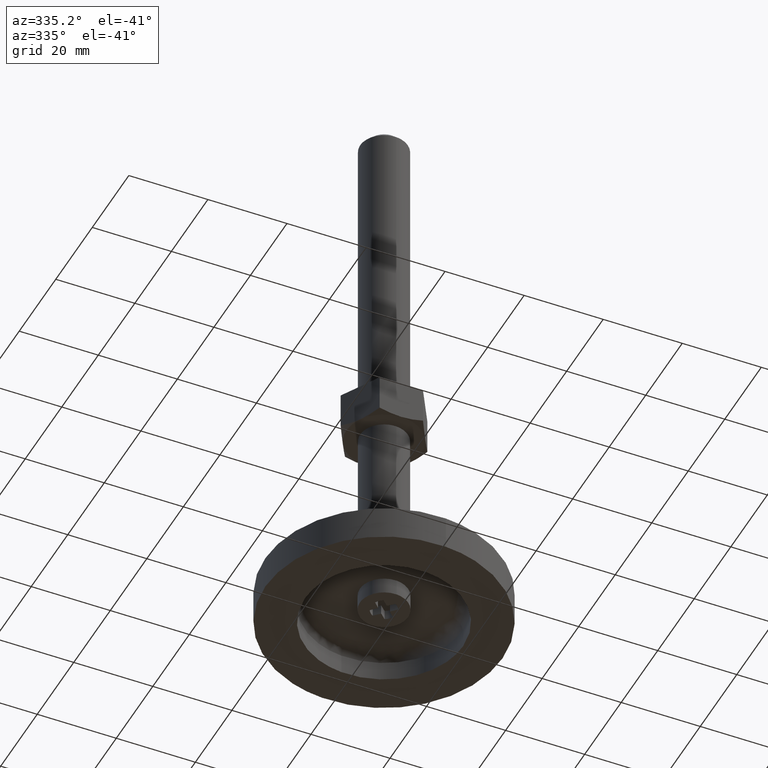
[diagram: clean part render]
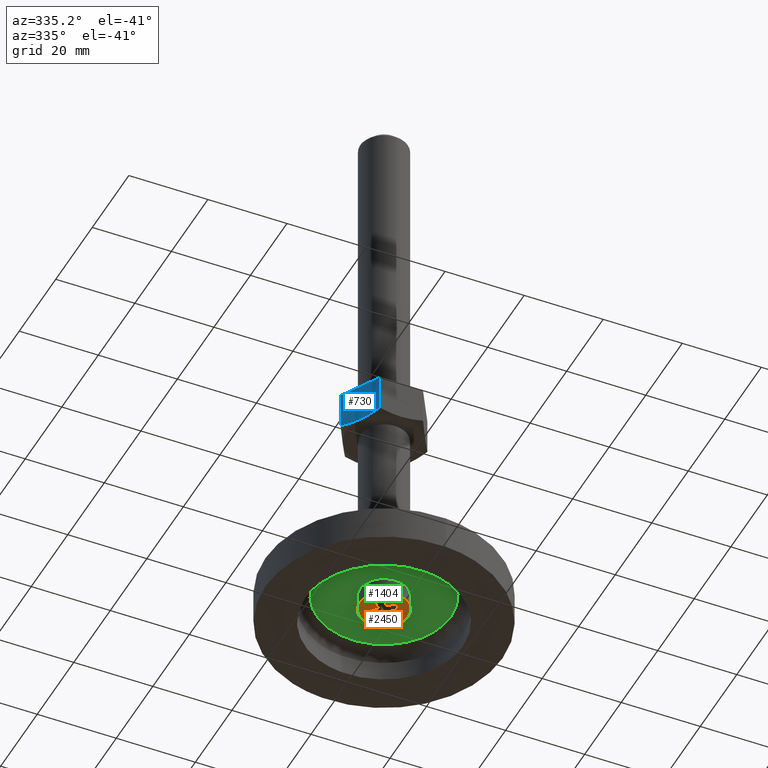
[diagram: same view with three faces highlighted in distinct colors, each labeled with its STEP entity id]
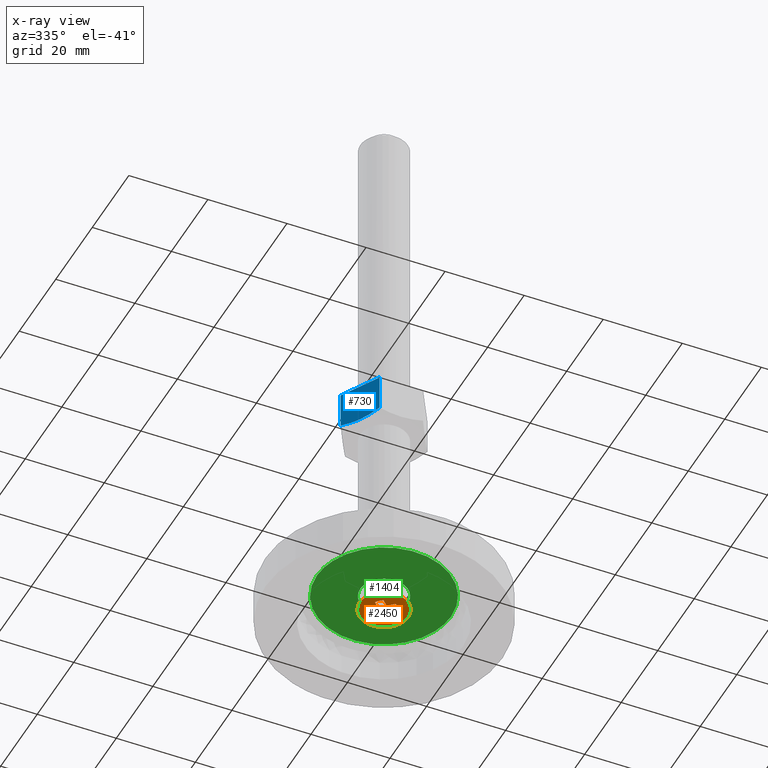
[diagram: x-ray of the same camera — body ghosted, the three highlighted faces saturated]
A machine part, auxiliary view with three faces highlighted in distinct colors.
The next image is the same camera in x-ray (body ghosted, the three faces saturated) — at least one of them is partly hidden behind the body in this view.
Their STEP definitions:

[orange] entity #2450 — the highlighted face is a freeform B-spline surface patch.
#1854=CARTESIAN_POINT('',(1.507458000000000,0.0,3.800000000000000));
#1855=VERTEX_POINT('',#1854);
#1856=CARTESIAN_POINT('',(1.516942000000000,-0.031022999999990,3.800000000000000));
#1857=VERTEX_POINT('',#1856);
#1858=CARTESIAN_POINT('',(1.507458000000000,0.0,3.800000000000000));
#1859=CARTESIAN_POINT('',(1.516942000000000,-0.031022999999990,3.800000000000000));
#1860=QUASI_UNIFORM_CURVE('',1,(#1858,#1859),.UNSPECIFIED.,.F.,.U.);
#1861=EDGE_CURVE('',#1855,#1857,#1860,.T.);
#1882=CARTESIAN_POINT('',(1.516942000000000,0.031022000000021,3.800000000000000));
#1883=VERTEX_POINT('',#1882);
#1884=CARTESIAN_POINT('',(1.516942000000000,0.031022000000021,3.800000000000000));
#1885=CARTESIAN_POINT('',(1.507458000000000,0.0,3.800000000000000));
#1886=QUASI_UNIFORM_CURVE('',1,(#1884,#1885),.UNSPECIFIED.,.F.,.U.);
#1887=EDGE_CURVE('',#1883,#1855,#1886,.T.);
#1904=CARTESIAN_POINT('',(2.938048381164885,1.502621612361035,3.800000000000000));
#1905=VERTEX_POINT('',#1904);
#1906=CARTESIAN_POINT('',(2.938048381164885,1.502621612361035,3.800000000000000));
#1907=CARTESIAN_POINT('',(1.516942000000000,0.031022000000021,3.800000000000000));
#1908=QUASI_UNIFORM_CURVE('',1,(#1906,#1907),.UNSPECIFIED.,.F.,.U.);
#1909=EDGE_CURVE('',#1905,#1883,#1908,.T.);
#1935=CARTESIAN_POINT('',(1.502622000000000,2.938048000000000,3.800000000000000));
#1936=VERTEX_POINT('',#1935);
#1937=CARTESIAN_POINT('',(1.502622000000000,2.938048000000000,3.800000000000000));
#1938=CARTESIAN_POINT('',(2.452332777499703,2.452332392051412,3.800000000000000));
#1939=CARTESIAN_POINT('',(2.938048381164885,1.502621612361037,3.800000000000000));
#1947=(BOUNDED_CURVE()B_SPLINE_CURVE(2,(#1937,#1938,#1939),.UNSPECIFIED.,.F.,.U.)CURVE()GEOMETRIC_REPRESENTATION_ITEM()QUASI_UNIFORM_CURVE()RATIONAL_B_SPLINE_CURVE((1.0,0.951523619757786,1.0))REPRESENTATION_ITEM(''));
#1948=EDGE_CURVE('',#1936,#1905,#1947,.T.);
#1965=CARTESIAN_POINT('',(0.031023000000019,1.516941000000000,3.800000000000000));
#1966=VERTEX_POINT('',#1965);
#1967=CARTESIAN_POINT('',(0.031023000000019,1.516941000000000,3.800000000000000));
#1968=CARTESIAN_POINT('',(1.502622000000000,2.938048000000000,3.800000000000000));
#1969=QUASI_UNIFORM_CURVE('',1,(#1967,#1968),.UNSPECIFIED.,.F.,.U.);
#1970=EDGE_CURVE('',#1966,#1936,#1969,.T.);
#1987=CARTESIAN_POINT('',(1.421085E-014,1.507457000000000,3.800000000000000));
#1988=VERTEX_POINT('',#1987);
#1989=CARTESIAN_POINT('',(1.421085E-014,1.507457000000000,3.800000000000000));
#1990=CARTESIAN_POINT('',(0.031023000000019,1.516941000000000,3.800000000000000));
#1991=QUASI_UNIFORM_CURVE('',1,(#1989,#1990),.UNSPECIFIED.,.F.,.U.);
#1992=EDGE_CURVE('',#1988,#1966,#1991,.T.);
#2009=CARTESIAN_POINT('',(-0.031022000000021,1.516941000000000,3.800000000000000));
#2010=VERTEX_POINT('',#2009);
#2011=CARTESIAN_POINT('',(-0.031022000000021,1.516941000000000,3.800000000000000));
#2012=CARTESIAN_POINT('',(1.421085E-014,1.507457000000000,3.800000000000000));
#2013=QUASI_UNIFORM_CURVE('',1,(#2011,#2012),.UNSPECIFIED.,.F.,.U.);
#2014=EDGE_CURVE('',#2010,#1988,#2013,.T.);
#2031=CARTESIAN_POINT('',(-1.502621612361020,2.938048381164870,3.800000000000000));
#2032=VERTEX_POINT('',#2031);
#2033=CARTESIAN_POINT('',(-1.502621612361020,2.938048381164870,3.800000000000000));
#2034=CARTESIAN_POINT('',(-0.031022000000021,1.516941000000000,3.800000000000000));
#2035=QUASI_UNIFORM_CURVE('',1,(#2033,#2034),.UNSPECIFIED.,.F.,.U.);
#2036=EDGE_CURVE('',#2032,#2010,#2035,.T.);
#2062=CARTESIAN_POINT('',(-2.938048000000000,1.502621000000000,3.800000000000000));
#2063=VERTEX_POINT('',#2062);
#2064=CARTESIAN_POINT('',(-2.938048000000000,1.502621000000000,3.800000000000000));
#2065=CARTESIAN_POINT('',(-2.452332829796128,2.452332553621587,3.800000000000000));
#2066=CARTESIAN_POINT('',(-1.502621612361022,2.938048381164871,3.800000000000000));
#2074=(BOUNDED_CURVE()B_SPLINE_CURVE(2,(#2064,#2065,#2066),.UNSPECIFIED.,.F.,.U.)CURVE()GEOMETRIC_REPRESENTATION_ITEM()QUASI_UNIFORM_CURVE()RATIONAL_B_SPLINE_CURVE((1.0,0.951523578266854,1.0))REPRESENTATION_ITEM(''));
#2075=EDGE_CURVE('',#2063,#2032,#2074,.T.);
#2092=CARTESIAN_POINT('',(-1.516942000000000,0.031022000000021,3.800000000000000));
#2093=VERTEX_POINT('',#2092);
#2094=CARTESIAN_POINT('',(-1.516942000000000,0.031022000000021,3.800000000000000));
#2095=CARTESIAN_POINT('',(-2.938048000000000,1.502621000000000,3.800000000000000));
#2096=QUASI_UNIFORM_CURVE('',1,(#2094,#2095),.UNSPECIFIED.,.F.,.U.);
#2097=EDGE_CURVE('',#2093,#2063,#2096,.T.);
#2114=CARTESIAN_POINT('',(-1.507457000000000,0.0,3.800000000000000));
#2115=VERTEX_POINT('',#2114);
#2116=CARTESIAN_POINT('',(-1.507457000000000,0.0,3.800000000000000));
#2117=CARTESIAN_POINT('',(-1.516942000000000,0.031022000000021,3.800000000000000));
#2118=QUASI_UNIFORM_CURVE('',1,(#2116,#2117),.UNSPECIFIED.,.F.,.U.);
#2119=EDGE_CURVE('',#2115,#2093,#2118,.T.);
#2136=CARTESIAN_POINT('',(-1.516942000000000,-0.031022999999990,3.800000000000000));
#2137=VERTEX_POINT('',#2136);
#2138=CARTESIAN_POINT('',(-1.516942000000000,-0.031022999999990,3.800000000000000));
#2139=CARTESIAN_POINT('',(-1.507457000000000,0.0,3.800000000000000));
#2140=QUASI_UNIFORM_CURVE('',1,(#2138,#2139),.UNSPECIFIED.,.F.,.U.);
#2141=EDGE_CURVE('',#2137,#2115,#2140,.T.);
#2158=CARTESIAN_POINT('',(-2.938048119581405,-1.502622123830235,3.800000000000000));
#2159=VERTEX_POINT('',#2158);
#2160=CARTESIAN_POINT('',(-2.938048119581405,-1.502622123830235,3.800000000000000));
#2161=CARTESIAN_POINT('',(-1.516942000000000,-0.031022999999990,3.800000000000000));
#2162=QUASI_UNIFORM_CURVE('',1,(#2160,#2161),.UNSPECIFIED.,.F.,.U.);
#2163=EDGE_CURVE('',#2159,#2137,#2162,.T.);
#2189=CARTESIAN_POINT('',(-1.502621000000000,-2.938049000000000,3.800000000000000));
#2190=VERTEX_POINT('',#2189);
#2191=CARTESIAN_POINT('',(-1.502621000000000,-2.938049000000000,3.800000000000000));
#2192=CARTESIAN_POINT('',(-2.452332156666679,-2.452333198131919,3.800000000000000));
#2193=CARTESIAN_POINT('',(-2.938048119581405,-1.502622123830235,3.800000000000000));
#2201=(BOUNDED_CURVE()B_SPLINE_CURVE(2,(#2191,#2192,#2193),.UNSPECIFIED.,.F.,.U.)CURVE()GEOMETRIC_REPRESENTATION_ITEM()QUASI_UNIFORM_CURVE()RATIONAL_B_SPLINE_CURVE((1.0,0.951523583819050,1.0))REPRESENTATION_ITEM(''));
#2202=EDGE_CURVE('',#2190,#2159,#2201,.T.);
#2219=CARTESIAN_POINT('',(-0.031022000000021,-1.516942000000000,3.800000000000000));
#2220=VERTEX_POINT('',#2219);
#2221=CARTESIAN_POINT('',(-0.031022000000021,-1.516942000000000,3.800000000000000));
#2222=CARTESIAN_POINT('',(-1.502621000000000,-2.938049000000000,3.800000000000000));
#2223=QUASI_UNIFORM_CURVE('',1,(#2221,#2222),.UNSPECIFIED.,.F.,.U.);
#2224=EDGE_CURVE('',#2220,#2190,#2223,.T.);
#2241=CARTESIAN_POINT('',(1.421085E-014,-1.507458000000000,3.800000000000000));
#2242=VERTEX_POINT('',#2241);
#2243=CARTESIAN_POINT('',(1.421085E-014,-1.507458000000000,3.800000000000000));
#2244=CARTESIAN_POINT('',(-0.031022000000021,-1.516942000000000,3.800000000000000));
#2245=QUASI_UNIFORM_CURVE('',1,(#2243,#2244),.UNSPECIFIED.,.F.,.U.);
#2246=EDGE_CURVE('',#2242,#2220,#2245,.T.);
#2263=CARTESIAN_POINT('',(0.031023000000019,-1.516942000000000,3.800000000000000));
#2264=VERTEX_POINT('',#2263);
#2265=CARTESIAN_POINT('',(0.031023000000019,-1.516942000000000,3.800000000000000));
#2266=CARTESIAN_POINT('',(1.421085E-014,-1.507458000000000,3.800000000000000));
#2267=QUASI_UNIFORM_CURVE('',1,(#2265,#2266),.UNSPECIFIED.,.F.,.U.);
#2268=EDGE_CURVE('',#2264,#2242,#2267,.T.);
#2285=CARTESIAN_POINT('',(1.502621612361045,-2.938048381164870,3.800000000000000));
#2286=VERTEX_POINT('',#2285);
#2287=CARTESIAN_POINT('',(1.502621612361045,-2.938048381164870,3.800000000000000));
#2288=CARTESIAN_POINT('',(0.031023000000019,-1.516942000000000,3.800000000000000));
#2289=QUASI_UNIFORM_CURVE('',1,(#2287,#2288),.UNSPECIFIED.,.F.,.U.);
#2290=EDGE_CURVE('',#2286,#2264,#2289,.T.);
#2316=CARTESIAN_POINT('',(2.938048381164885,-1.502621612361030,3.800000000000000));
#2317=VERTEX_POINT('',#2316);
#2318=CARTESIAN_POINT('',(2.938048381164888,-1.502621612361031,3.800000000000000));
#2319=CARTESIAN_POINT('',(2.452332647072784,-2.452332647072770,3.800000000000000));
#2320=CARTESIAN_POINT('',(1.502621612361045,-2.938048381164874,3.800000000000000));
#2328=(BOUNDED_CURVE()B_SPLINE_CURVE(2,(#2318,#2319,#2320),.UNSPECIFIED.,.F.,.U.)CURVE()GEOMETRIC_REPRESENTATION_ITEM()QUASI_UNIFORM_CURVE()RATIONAL_B_SPLINE_CURVE((1.0,0.951523595585997,1.0))REPRESENTATION_ITEM(''));
#2329=EDGE_CURVE('',#2317,#2286,#2328,.T.);
#2346=CARTESIAN_POINT('',(1.516942000000000,-0.031022999999990,3.800000000000000));
#2347=CARTESIAN_POINT('',(2.938048381164885,-1.502621612361030,3.800000000000000));
#2348=QUASI_UNIFORM_CURVE('',1,(#2346,#2347),.UNSPECIFIED.,.F.,.U.);
#2349=EDGE_CURVE('',#1857,#2317,#2348,.T.);
#2357=CARTESIAN_POINT('',(-6.709389976354034,6.709239748060960,3.800000000000000));
#2358=CARTESIAN_POINT('',(6.709390303583533,6.709239748060960,3.800000000000000));
#2359=CARTESIAN_POINT('',(-6.709389976354034,-6.709239638984462,3.800000000000000));
#2360=CARTESIAN_POINT('',(6.709390303583533,-6.709239638984462,3.800000000000000));
#2361=B_SPLINE_SURFACE_WITH_KNOTS('',1,1,((#2357,#2359),(#2358,#2360)),.UNSPECIFIED.,.F.,.F.,.U.,(2,2),(2,2),(0.0,13.418780279937570),(0.0,13.418479387045419),.UNSPECIFIED.);
#2362=CARTESIAN_POINT('',(-6.100000000000001,0.0,3.800000000000000));
#2363=VERTEX_POINT('',#2362);
#2364=CARTESIAN_POINT('',(-0.372396091483395,6.088622270353769,3.800000000000000));
#2365=VERTEX_POINT('',#2364);
#2366=CARTESIAN_POINT('',(-6.100000000000001,0.0,3.800000000000000));
#2367=CARTESIAN_POINT('',(-6.100000000000002,5.738307007821864,3.800000000000000));
#2368=CARTESIAN_POINT('',(-0.372396091483395,6.088622270353770,3.800000000000000));
#2376=(BOUNDED_CURVE()B_SPLINE_CURVE(2,(#2366,#2367,#2368),.UNSPECIFIED.,.F.,.U.)B_SPLINE_CURVE_WITH_KNOTS((3,3),(0.0,0.239332962232878),.UNSPECIFIED.)CURVE()GEOMETRIC_REPRESENTATION_ITEM()RATIONAL_B_SPLINE_CURVE((1.0,0.719603993293816,0.976072041653720))REPRESENTATION_ITEM(''));
#2377=EDGE_CURVE('',#2363,#2365,#2376,.T.);
#2378=ORIENTED_EDGE('',*,*,#2377,.T.);
#2379=CARTESIAN_POINT('',(6.100000000000001,0.0,3.800000000000000));
#2380=VERTEX_POINT('',#2379);
#2381=CARTESIAN_POINT('',(-0.372396091483395,6.088622270353770,3.800000000000000));
#2382=CARTESIAN_POINT('',(-0.186371856282226,6.100000000000000,3.800000000000000));
#2383=CARTESIAN_POINT('',(0.0,6.100000000000001,3.800000000000000));
#2384=CARTESIAN_POINT('',(6.100000000000001,6.100000000000001,3.800000000000000));
#2385=CARTESIAN_POINT('',(6.100000000000001,0.0,3.800000000000000));
#2393=(BOUNDED_CURVE()B_SPLINE_CURVE(2,(#2381,#2382,#2383,#2384,#2385),.UNSPECIFIED.,.F.,.U.)B_SPLINE_CURVE_WITH_KNOTS((3,2,3),(0.239332962232878,0.250000000000000,0.500000000000000),.UNSPECIFIED.)CURVE()GEOMETRIC_REPRESENTATION_ITEM()RATIONAL_B_SPLINE_CURVE((0.976072041653720,0.987502787892732,1.0,0.707106781186547,1.0))REPRESENTATION_ITEM(''));
#2394=EDGE_CURVE('',#2365,#2380,#2393,.T.);
#2395=ORIENTED_EDGE('',*,*,#2394,.T.);
#2396=CARTESIAN_POINT('',(0.372396091483396,-6.088622270353769,3.800000000000000));
#2397=VERTEX_POINT('',#2396);
#2398=CARTESIAN_POINT('',(6.100000000000001,0.0,3.800000000000000));
#2399=CARTESIAN_POINT('',(6.100000000000001,-5.738307007821860,3.799999999999999));
#2400=CARTESIAN_POINT('',(0.372396091483397,-6.088622270353770,3.799999999999999));
#2408=(BOUNDED_CURVE()B_SPLINE_CURVE(2,(#2398,#2399,#2400),.UNSPECIFIED.,.F.,.U.)B_SPLINE_CURVE_WITH_KNOTS((3,3),(0.500000000000000,0.739332962232878),.UNSPECIFIED.)CURVE()GEOMETRIC_REPRESENTATION_ITEM()RATIONAL_B_SPLINE_CURVE((1.0,0.719603993293816,0.976072041653719))REPRESENTATION_ITEM(''));
#2409=EDGE_CURVE('',#2380,#2397,#2408,.T.);
#2410=ORIENTED_EDGE('',*,*,#2409,.T.);
#2411=CARTESIAN_POINT('',(0.372396091483397,-6.088622270353770,3.799999999999999));
#2412=CARTESIAN_POINT('',(0.186371856282227,-6.100000000000001,3.800000000000000));
#2413=CARTESIAN_POINT('',(0.0,-6.100000000000001,3.800000000000000));
#2414=CARTESIAN_POINT('',(-6.100000000000001,-6.100000000000001,3.800000000000000));
#2415=CARTESIAN_POINT('',(-6.100000000000001,0.0,3.800000000000000));
#2423=(BOUNDED_CURVE()B_SPLINE_CURVE(2,(#2411,#2412,#2413,#2414,#2415),.UNSPECIFIED.,.F.,.U.)B_SPLINE_CURVE_WITH_KNOTS((3,2,3),(0.739332962232878,0.750000000000000,1.0),.UNSPECIFIED.)CURVE()GEOMETRIC_REPRESENTATION_ITEM()RATIONAL_B_SPLINE_CURVE((0.976072041653719,0.987502787892732,1.0,0.707106781186547,1.0))REPRESENTATION_ITEM(''));
#2424=EDGE_CURVE('',#2397,#2363,#2423,.T.);
#2425=ORIENTED_EDGE('',*,*,#2424,.T.);
#2426=EDGE_LOOP('',(#2378,#2395,#2410,#2425));
#2427=FACE_OUTER_BOUND('',#2426,.T.);
#2428=ORIENTED_EDGE('',*,*,#2349,.F.);
#2429=ORIENTED_EDGE('',*,*,#1861,.F.);
#2430=ORIENTED_EDGE('',*,*,#1887,.F.);
#2431=ORIENTED_EDGE('',*,*,#1909,.F.);
#2432=ORIENTED_EDGE('',*,*,#1948,.F.);
#2433=ORIENTED_EDGE('',*,*,#1970,.F.);
#2434=ORIENTED_EDGE('',*,*,#1992,.F.);
#2435=ORIENTED_EDGE('',*,*,#2014,.F.);
#2436=ORIENTED_EDGE('',*,*,#2036,.F.);
#2437=ORIENTED_EDGE('',*,*,#2075,.F.);
#2438=ORIENTED_EDGE('',*,*,#2097,.F.);
#2439=ORIENTED_EDGE('',*,*,#2119,.F.);
#2440=ORIENTED_EDGE('',*,*,#2141,.F.);
#2441=ORIENTED_EDGE('',*,*,#2163,.F.);
#2442=ORIENTED_EDGE('',*,*,#2202,.F.);
#2443=ORIENTED_EDGE('',*,*,#2224,.F.);
#2444=ORIENTED_EDGE('',*,*,#2246,.F.);
#2445=ORIENTED_EDGE('',*,*,#2268,.F.);
#2446=ORIENTED_EDGE('',*,*,#2290,.F.);
#2447=ORIENTED_EDGE('',*,*,#2329,.F.);
#2448=EDGE_LOOP('',(#2428,#2429,#2430,#2431,#2432,#2433,#2434,#2435,#2436,#2437,#2438,#2439,#2440,#2441,#2442,#2443,#2444,#2445,#2446,#2447));
#2449=FACE_BOUND('',#2448,.T.);
#2450=ADVANCED_FACE('',(#2427,#2449),#2361,.T.);

[blue] entity #730 — the highlighted face is a freeform B-spline surface patch.
#192=CARTESIAN_POINT('',(-8.227240917976038,-4.750000142069610,55.0));
#193=VERTEX_POINT('',#192);
#495=CARTESIAN_POINT('',(-5.484827000000000,-9.499999999999890,55.848505520439900));
#496=VERTEX_POINT('',#495);
#497=CARTESIAN_POINT('',(-8.227240917976038,-4.750000142069610,55.0));
#498=CARTESIAN_POINT('',(-8.112392931167415,-4.948922674313443,55.000000849188950));
#499=CARTESIAN_POINT('',(-7.996987996330014,-5.148809868762444,55.004845661841777));
#500=CARTESIAN_POINT('',(-7.765462005362447,-5.549824616023771,55.024220137699579));
#501=CARTESIAN_POINT('',(-7.649230439246872,-5.751143577730128,55.038873433089947));
#502=CARTESIAN_POINT('',(-7.301698845640712,-6.353085906506609,55.096876855911923));
#503=CARTESIAN_POINT('',(-7.071564642153546,-6.751690007333116,55.154303352864993));
#504=CARTESIAN_POINT('',(-6.385259256312820,-7.940405709172234,55.376053473600990));
#505=CARTESIAN_POINT('',(-5.933169333746267,-8.723448361445419,55.589654964975153));
#506=CARTESIAN_POINT('',(-5.484826999999972,-9.499999999999940,55.848505520439574));
#507=B_SPLINE_CURVE_WITH_KNOTS('',3,(#497,#498,#499,#500,#501,#502,#503,#504,#505,#506),.UNSPECIFIED.,.F.,.U.,(4,2,2,2,4),(0.500936464892180,0.562499999999999,0.624999999999999,0.750000000000000,1.0),.UNSPECIFIED.);
#508=EDGE_CURVE('',#193,#496,#507,.T.);
#541=CARTESIAN_POINT('',(-10.969654999999999,7.479928E-016,55.848505615153002));
#542=VERTEX_POINT('',#541);
#557=CARTESIAN_POINT('',(-10.969654999999999,7.479928E-016,55.848505615153002));
#558=CARTESIAN_POINT('',(-10.521870856972591,-0.775584823947164,55.589977319636759));
#559=CARTESIAN_POINT('',(-10.070821999693550,-1.556824298393903,55.376903152500709));
#560=CARTESIAN_POINT('',(-9.387193509194672,-2.740903481868612,55.155520460263787));
#561=CARTESIAN_POINT('',(-9.158138658389831,-3.137638089160949,55.098136916629663));
#562=CARTESIAN_POINT('',(-8.697361337594094,-3.935727755338156,55.020510692422221));
#563=CARTESIAN_POINT('',(-8.465636562488992,-4.337086806797649,55.000300105609512));
#564=CARTESIAN_POINT('',(-8.230734776492051,-4.743948602093854,55.000000850196187));
#565=CARTESIAN_POINT('',(-8.228987911668185,-4.746974260478536,54.999999745959023));
#566=CARTESIAN_POINT('',(-8.227240917974688,-4.750000142071944,54.999999762489203));
#567=B_SPLINE_CURVE_WITH_KNOTS('',3,(#557,#558,#559,#560,#561,#562,#563,#564,#565,#566),.UNSPECIFIED.,.F.,.U.,(4,2,2,2,4),(0.0,0.250000000000000,0.375000000000000,0.499999999999999,0.500936464892180),.UNSPECIFIED.);
#568=EDGE_CURVE('',#542,#193,#567,.T.);
#578=CARTESIAN_POINT('',(-5.484827000000000,-9.499999999999890,65.0));
#579=VERTEX_POINT('',#578);
#580=CARTESIAN_POINT('',(-10.969654999999999,0.0,65.0));
#581=VERTEX_POINT('',#580);
#582=CARTESIAN_POINT('',(-5.484827000000000,-9.499999999999890,65.0));
#583=CARTESIAN_POINT('',(-10.969654999999999,0.0,65.0));
#584=QUASI_UNIFORM_CURVE('',1,(#582,#583),.UNSPECIFIED.,.F.,.U.);
#585=EDGE_CURVE('',#579,#581,#584,.T.);
#634=CARTESIAN_POINT('',(-5.484827000000000,-9.499999999999890,65.0));
#635=CARTESIAN_POINT('',(-5.484827000000000,-9.499999999999890,55.848505520439900));
#636=QUASI_UNIFORM_CURVE('',1,(#634,#635),.UNSPECIFIED.,.F.,.U.);
#637=EDGE_CURVE('',#579,#496,#636,.T.);
#709=CARTESIAN_POINT('',(-10.969654999999999,0.0,65.0));
#710=CARTESIAN_POINT('',(-10.969654999999999,7.479928E-016,55.848505615153002));
#711=QUASI_UNIFORM_CURVE('',1,(#709,#710),.UNSPECIFIED.,.F.,.U.);
#712=EDGE_CURVE('',#581,#542,#711,.T.);
#718=CARTESIAN_POINT('',(-11.243622147969340,0.474524981587148,54.500500019381938));
#719=CARTESIAN_POINT('',(-5.210859704916111,-9.974525236396897,54.500500019381938));
#720=CARTESIAN_POINT('',(-11.243622147969340,0.474524981587148,65.499500248838970));
#721=CARTESIAN_POINT('',(-5.210859704916111,-9.974525236396897,65.499500248838970));
#722=B_SPLINE_SURFACE_WITH_KNOTS('',1,1,((#718,#720),(#719,#721)),.UNSPECIFIED.,.F.,.F.,.U.,(2,2),(2,2),(0.0,12.065524155720130),(0.0,10.999000229457030),.UNSPECIFIED.);
#723=ORIENTED_EDGE('',*,*,#712,.T.);
#724=ORIENTED_EDGE('',*,*,#568,.T.);
#725=ORIENTED_EDGE('',*,*,#508,.T.);
#726=ORIENTED_EDGE('',*,*,#637,.F.);
#727=ORIENTED_EDGE('',*,*,#585,.T.);
#728=EDGE_LOOP('',(#723,#724,#725,#726,#727));
#729=FACE_OUTER_BOUND('',#728,.T.);
#730=ADVANCED_FACE('',(#729),#722,.T.);

[green] entity #1404 — the highlighted face is a freeform B-spline surface patch.
#1177=CARTESIAN_POINT('',(16.998657759165759,0.213622678700117,8.0));
#1178=VERTEX_POINT('',#1177);
#1192=CARTESIAN_POINT('',(-17.0,0.0,8.0));
#1193=VERTEX_POINT('',#1192);
#1194=CARTESIAN_POINT('',(-17.0,0.0,8.0));
#1195=CARTESIAN_POINT('',(-17.000267191690121,1.281351388941922,7.999999999999965));
#1196=CARTESIAN_POINT('',(-16.732440530957248,3.636122698613181,8.000000000000075));
#1197=CARTESIAN_POINT('',(-15.734160764370330,6.640192942413691,7.999999999999990));
#1198=CARTESIAN_POINT('',(-14.550583663675861,8.881205530059630,8.000000000000012));
#1199=CARTESIAN_POINT('',(-13.291097866960010,10.667236445901480,7.999999999999990));
#1200=CARTESIAN_POINT('',(-11.589746040445290,12.544242663715510,8.000000000000007));
#1201=CARTESIAN_POINT('',(-9.378701335168993,14.293609021184190,8.000000000000011));
#1202=CARTESIAN_POINT('',(-6.644121437018631,15.738250155777189,8.000000000000060));
#1203=CARTESIAN_POINT('',(-3.966432835081897,16.610456262089709,7.999999999999295));
#1204=CARTESIAN_POINT('',(-0.978612280981040,17.061748371238860,8.000000000001705));
#1205=CARTESIAN_POINT('',(1.804887195824551,16.985726646819241,7.999999999999027));
#1206=CARTESIAN_POINT('',(4.256371404256991,16.500338890089139,8.000000000000348));
#1207=CARTESIAN_POINT('',(6.234941497651493,15.856584682405471,7.999999999999835));
#1208=CARTESIAN_POINT('',(8.600093815462483,14.770189513673101,8.000000000000444));
#1209=CARTESIAN_POINT('',(11.174956257281560,12.978674757509250,8.000000000000126));
#1210=CARTESIAN_POINT('',(13.314202766346581,10.691393041549990,8.000000000000487));
#1211=CARTESIAN_POINT('',(14.955562382172831,8.240454378904857,7.999999999998850));
#1212=CARTESIAN_POINT('',(16.039101411546159,5.866272371685184,8.000000000002347));
#1213=CARTESIAN_POINT('',(16.797357250430039,3.050985595655051,7.999999999995453));
#1214=CARTESIAN_POINT('',(16.985718262638560,1.252461645797829,8.000000000005384));
#1215=CARTESIAN_POINT('',(16.998657759165759,0.213622678700117,8.0));
#1216=B_SPLINE_CURVE_WITH_KNOTS('',3,(#1194,#1195,#1196,#1197,#1198,#1199,#1200,#1201,#1202,#1203,#1204,#1205,#1206,#1207,#1208,#1209,#1210,#1211,#1212,#1213,#1214,#1215),.UNSPECIFIED.,.F.,.U.,(4,1,1,1,1,1,1,1,1,1,1,1,1,1,1,1,1,1,1,4),(0.000000278146963,3.843982647303250,7.064711386661521,9.454294312921228,11.428298649999240,13.610069256237569,17.038582355264349,19.843702459084088,22.856666570031688,25.453975827992760,28.882386439035681,31.168022864070888,32.934216683285861,35.116000166026510,38.960097494563229,42.284717084251639,44.466504770401073,47.791126263515586,50.076791322548317,53.193529594947393),.UNSPECIFIED.);
#1217=EDGE_CURVE('',#1193,#1178,#1216,.T.);
#1219=CARTESIAN_POINT('',(-16.998657759165759,-0.213622678700118,8.0));
#1220=VERTEX_POINT('',#1219);
#1221=CARTESIAN_POINT('',(-16.998657759165756,-0.213622678700118,8.0));
#1222=CARTESIAN_POINT('',(-17.000000003854119,-0.106815556203723,8.0));
#1223=CARTESIAN_POINT('',(-17.0,0.0,8.0));
#1231=(BOUNDED_CURVE()B_SPLINE_CURVE(2,(#1221,#1222,#1223),.UNSPECIFIED.,.F.,.U.)B_SPLINE_CURVE_WITH_KNOTS((3,3),(0.997784295915663,1.0),.UNSPECIFIED.)CURVE()GEOMETRIC_REPRESENTATION_ITEM()RATIONAL_B_SPLINE_CURVE((0.994854295630052,0.997404141195201,1.0))REPRESENTATION_ITEM(''));
#1232=EDGE_CURVE('',#1220,#1193,#1231,.T.);
#1281=CARTESIAN_POINT('',(17.0,0.0,8.0));
#1282=VERTEX_POINT('',#1281);
#1283=CARTESIAN_POINT('',(17.0,0.0,8.0));
#1284=CARTESIAN_POINT('',(17.000282562250430,-1.281358643855789,8.000000000000020));
#1285=CARTESIAN_POINT('',(16.787501723601849,-3.151284001454445,7.999999999999973));
#1286=CARTESIAN_POINT('',(16.016443905449471,-5.852300447182459,7.999999999999986));
#1287=CARTESIAN_POINT('',(14.888181762491801,-8.431011274396280,8.0));
#1288=CARTESIAN_POINT('',(13.076283868667749,-11.034134526432720,7.999999999999995));
#1289=CARTESIAN_POINT('',(10.999750360649360,-13.035824945227841,8.000000000000037));
#1290=CARTESIAN_POINT('',(8.948494064278393,-14.520787041459579,7.999999999999913));
#1291=CARTESIAN_POINT('',(6.429069890593824,-15.851966585781090,7.999999999999962));
#1292=CARTESIAN_POINT('',(3.494220123652004,-16.739065798391142,8.000000000000526));
#1293=CARTESIAN_POINT('',(0.835134496104643,-17.024735938636208,7.999999999999093));
#1294=CARTESIAN_POINT('',(-1.452810494810024,-16.983169217247280,8.000000000000684));
#1295=CARTESIAN_POINT('',(-4.134178850759068,-16.596193811183038,7.999999999999667));
#1296=CARTESIAN_POINT('',(-6.868141201891390,-15.650849582951800,7.999999999999982));
#1297=CARTESIAN_POINT('',(-9.109104615637191,-14.396687792209869,8.000000000000080));
#1298=CARTESIAN_POINT('',(-10.911066248347931,-13.101643962238979,8.000000000000657));
#1299=CARTESIAN_POINT('',(-12.632623359086180,-11.483078767497750,7.999999999999746));
#1300=CARTESIAN_POINT('',(-14.457701028760759,-9.118490369592253,8.000000000000048));
#1301=CARTESIAN_POINT('',(-15.928649430439620,-6.272861314739173,8.000000000000089));
#1302=CARTESIAN_POINT('',(-16.799053932885030,-3.154978439119134,7.999999999999842));
#1303=CARTESIAN_POINT('',(-16.987383378959329,-1.113950748292351,8.000000000000064));
#1304=CARTESIAN_POINT('',(-16.998657759165759,-0.213622678700118,8.0));
#1305=B_SPLINE_CURVE_WITH_KNOTS('',3,(#1283,#1284,#1285,#1286,#1287,#1288,#1289,#1290,#1291,#1292,#1293,#1294,#1295,#1296,#1297,#1298,#1299,#1300,#1301,#1302,#1303,#1304),.UNSPECIFIED.,.F.,.U.,(4,1,1,1,1,1,1,1,1,1,1,1,1,1,1,1,1,1,1,4),(0.000000278381428,3.843982647521713,5.610205665366543,8.415363812174384,12.259447634016720,15.064582457992890,17.038582355424591,19.843702459231888,23.583931443843241,26.181194161570531,27.843402385635422,30.440751718093889,34.284857063080850,36.466651094665302,38.128945004650092,40.934087921425139,43.531431814311752,47.063843659010317,50.492320866399751,53.193529594946980),.UNSPECIFIED.);
#1306=EDGE_CURVE('',#1282,#1220,#1305,.T.);
#1308=CARTESIAN_POINT('',(16.998657759165756,0.213622678700117,8.0));
#1309=CARTESIAN_POINT('',(17.000000003854119,0.106815556203722,8.0));
#1310=CARTESIAN_POINT('',(17.0,0.0,8.0));
#1318=(BOUNDED_CURVE()B_SPLINE_CURVE(2,(#1308,#1309,#1310),.UNSPECIFIED.,.F.,.U.)B_SPLINE_CURVE_WITH_KNOTS((3,3),(0.497784295915663,0.500000000000000),.UNSPECIFIED.)CURVE()GEOMETRIC_REPRESENTATION_ITEM()RATIONAL_B_SPLINE_CURVE((0.994854295630052,0.997404141195201,1.0))REPRESENTATION_ITEM(''));
#1319=EDGE_CURVE('',#1178,#1282,#1318,.T.);
#1327=CARTESIAN_POINT('',(18.698299934101399,-18.697931459019099,8.0));
#1328=CARTESIAN_POINT('',(-18.698300846052469,-18.697931459019099,8.0));
#1329=CARTESIAN_POINT('',(18.698299934101399,18.697932370952191,8.0));
#1330=CARTESIAN_POINT('',(-18.698300846052469,18.697932370952191,8.0));
#1331=B_SPLINE_SURFACE_WITH_KNOTS('',1,1,((#1327,#1329),(#1328,#1330)),.UNSPECIFIED.,.F.,.F.,.U.,(2,2),(2,2),(0.0,37.396600780153868),(0.0,37.395863829971290),.UNSPECIFIED.);
#1332=ORIENTED_EDGE('',*,*,#1217,.T.);
#1333=ORIENTED_EDGE('',*,*,#1319,.T.);
#1334=ORIENTED_EDGE('',*,*,#1306,.T.);
#1335=ORIENTED_EDGE('',*,*,#1232,.T.);
#1336=EDGE_LOOP('',(#1332,#1333,#1334,#1335));
#1337=FACE_OUTER_BOUND('',#1336,.T.);
#1338=CARTESIAN_POINT('',(6.0,0.0,8.0));
#1339=VERTEX_POINT('',#1338);
#1340=CARTESIAN_POINT('',(0.366291237566363,-5.988808790509353,8.0));
#1341=VERTEX_POINT('',#1340);
#1342=CARTESIAN_POINT('',(6.0,0.0,8.0));
#1343=CARTESIAN_POINT('',(6.0,-5.644236401096872,8.0));
#1344=CARTESIAN_POINT('',(0.366291237566362,-5.988808790509353,8.0));
#1352=(BOUNDED_CURVE()B_SPLINE_CURVE(2,(#1342,#1343,#1344),.UNSPECIFIED.,.F.,.U.)B_SPLINE_CURVE_WITH_KNOTS((3,3),(0.500000000000000,0.739332962231676),.UNSPECIFIED.)CURVE()GEOMETRIC_REPRESENTATION_ITEM()RATIONAL_B_SPLINE_CURVE((1.0,0.719603993295224,0.976072041651144))REPRESENTATION_ITEM(''));
#1353=EDGE_CURVE('',#1339,#1341,#1352,.T.);
#1354=ORIENTED_EDGE('',*,*,#1353,.F.);
#1355=CARTESIAN_POINT('',(-0.366291237566362,5.988808790509353,8.0));
#1356=VERTEX_POINT('',#1355);
#1357=CARTESIAN_POINT('',(-0.366291237566362,5.988808790509353,8.0));
#1358=CARTESIAN_POINT('',(-0.183316579970644,6.0,8.0));
#1359=CARTESIAN_POINT('',(0.0,6.0,8.0));
#1360=CARTESIAN_POINT('',(6.0,6.0,8.0));
#1361=CARTESIAN_POINT('',(6.0,0.0,8.0));
#1369=(BOUNDED_CURVE()B_SPLINE_CURVE(2,(#1357,#1358,#1359,#1360,#1361),.UNSPECIFIED.,.F.,.U.)B_SPLINE_CURVE_WITH_KNOTS((3,2,3),(0.239332962231676,0.250000000000000,0.500000000000000),.UNSPECIFIED.)CURVE()GEOMETRIC_REPRESENTATION_ITEM()RATIONAL_B_SPLINE_CURVE((0.976072041651144,0.987502787891324,1.0,0.707106781186548,1.0))REPRESENTATION_ITEM(''));
#1370=EDGE_CURVE('',#1356,#1339,#1369,.T.);
#1371=ORIENTED_EDGE('',*,*,#1370,.F.);
#1372=CARTESIAN_POINT('',(-6.0,0.0,8.0));
#1373=VERTEX_POINT('',#1372);
#1374=CARTESIAN_POINT('',(-6.0,0.0,8.0));
#1375=CARTESIAN_POINT('',(-6.0,5.644236401096873,8.0));
#1376=CARTESIAN_POINT('',(-0.366291237566362,5.988808790509353,8.0));
#1384=(BOUNDED_CURVE()B_SPLINE_CURVE(2,(#1374,#1375,#1376),.UNSPECIFIED.,.F.,.U.)B_SPLINE_CURVE_WITH_KNOTS((3,3),(0.0,0.239332962231676),.UNSPECIFIED.)CURVE()GEOMETRIC_REPRESENTATION_ITEM()RATIONAL_B_SPLINE_CURVE((1.0,0.719603993295224,0.976072041651144))REPRESENTATION_ITEM(''));
#1385=EDGE_CURVE('',#1373,#1356,#1384,.T.);
#1386=ORIENTED_EDGE('',*,*,#1385,.F.);
#1387=CARTESIAN_POINT('',(0.366291237566362,-5.988808790509353,8.0));
#1388=CARTESIAN_POINT('',(0.183316579970645,-6.0,8.0));
#1389=CARTESIAN_POINT('',(0.0,-6.0,8.0));
#1390=CARTESIAN_POINT('',(-6.0,-6.0,8.0));
#1391=CARTESIAN_POINT('',(-6.0,0.0,8.0));
#1399=(BOUNDED_CURVE()B_SPLINE_CURVE(2,(#1387,#1388,#1389,#1390,#1391),.UNSPECIFIED.,.F.,.U.)B_SPLINE_CURVE_WITH_KNOTS((3,2,3),(0.739332962231676,0.750000000000000,1.0),.UNSPECIFIED.)CURVE()GEOMETRIC_REPRESENTATION_ITEM()RATIONAL_B_SPLINE_CURVE((0.976072041651144,0.987502787891324,1.0,0.707106781186548,1.0))REPRESENTATION_ITEM(''));
#1400=EDGE_CURVE('',#1341,#1373,#1399,.T.);
#1401=ORIENTED_EDGE('',*,*,#1400,.F.);
#1402=EDGE_LOOP('',(#1354,#1371,#1386,#1401));
#1403=FACE_BOUND('',#1402,.T.);
#1404=ADVANCED_FACE('',(#1337,#1403),#1331,.T.);